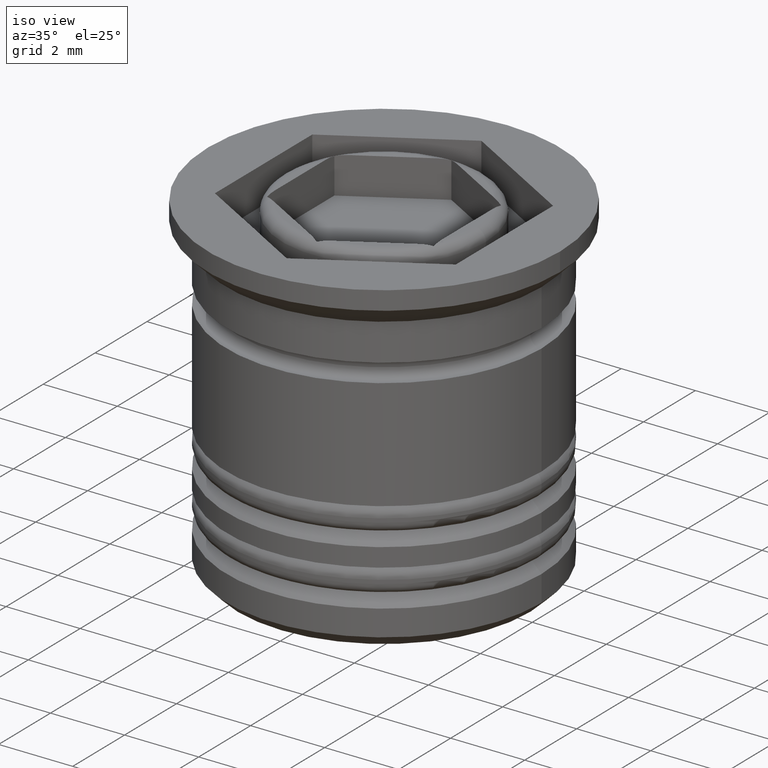
[diagram: clean part render]
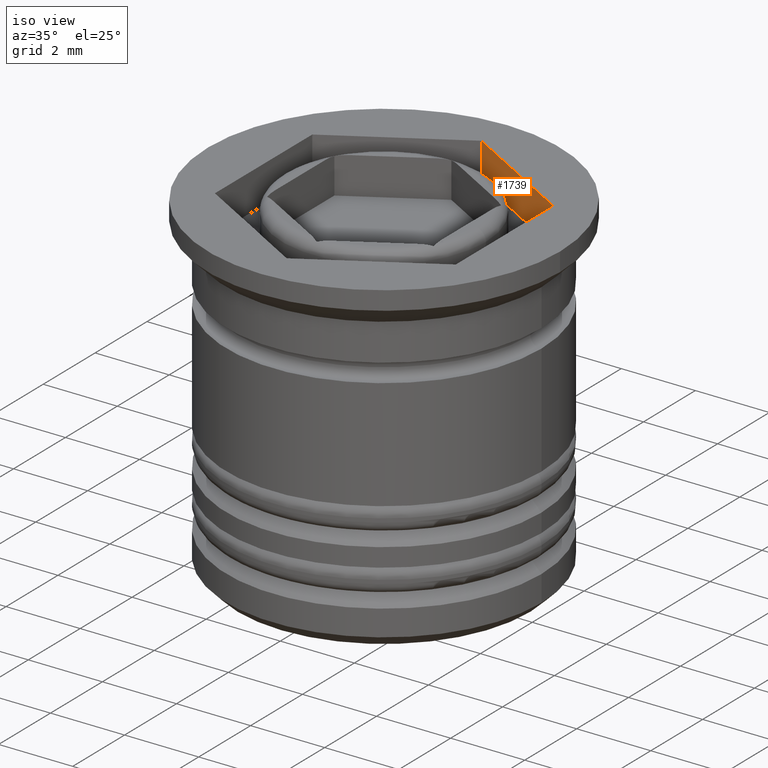
[diagram: same view with one face highlighted and labeled with its STEP entity id]
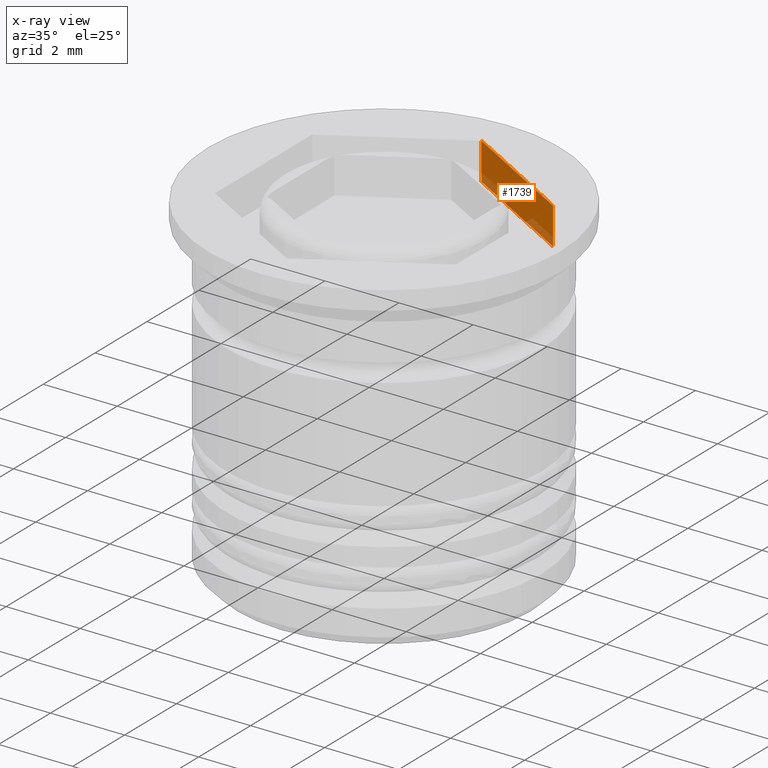
[diagram: x-ray of the same camera — body ghosted, the highlighted face saturated]
A machine part, iso view. The second image highlights one B-rep face of the part: STEP entity #1739.
The next image is the same camera in x-ray: the body ghosted, the highlighted face saturated — about 15% of this face is hidden behind the body in this view.
In plain terms, the highlighted planar face has unit normal (0.5, 0.866, 0).
Its self-contained STEP definition (entity closure, byte-faithful):
#51 = CARTESIAN_POINT ( 'NONE',  ( 3.249999999999999556, 1.876388374866283515, 0.000000000000000000 ) ) ;
#59 = DIRECTION ( 'NONE',  ( -0.8660254037844387076, 0.4999999999999998890, 0.000000000000000000 ) ) ;
#152 = EDGE_CURVE ( 'NONE', #932, #1563, #1043, .T. ) ;
#485 = VECTOR ( 'NONE', #59, 1000.000000000000114 ) ;
#500 = EDGE_CURVE ( 'NONE', #862, #932, #1842, .T. ) ;
#608 = PLANE ( 'NONE',  #1564 ) ;
#611 = EDGE_CURVE ( 'NONE', #862, #875, #1819, .T. ) ;
#692 = ORIENTED_EDGE ( 'NONE', *, *, #817, .F. ) ;
#817 = EDGE_CURVE ( 'NONE', #875, #1563, #1213, .T. ) ;
#862 = VERTEX_POINT ( 'NONE', #1078 ) ;
#875 = VERTEX_POINT ( 'NONE', #1684 ) ;
#876 = CARTESIAN_POINT ( 'NONE',  ( 1.624999999999999556, 2.814582562299425827, 0.000000000000000000 ) ) ;
#922 = CARTESIAN_POINT ( 'NONE',  ( 0.000000000000000000, 3.752776749732567474, 0.000000000000000000 ) ) ;
#932 = VERTEX_POINT ( 'NONE', #51 ) ;
#1043 = LINE ( 'NONE', #876, #1161 ) ;
#1046 = DIRECTION ( 'NONE',  ( -0.000000000000000000, -0.000000000000000000, 1.000000000000000000 ) ) ;
#1070 = DIRECTION ( 'NONE',  ( 0.4999999999999998335, 0.8660254037844387076, 0.000000000000000000 ) ) ;
#1078 = CARTESIAN_POINT ( 'NONE',  ( 3.249999999999999556, 1.876388374866284403, -1.000000000000000000 ) ) ;
#1161 = VECTOR ( 'NONE', #1176, 1000.000000000000114 ) ;
#1176 = DIRECTION ( 'NONE',  ( -0.8660254037844387076, 0.4999999999999998890, 0.000000000000000000 ) ) ;
#1213 = LINE ( 'NONE', #1804, #1688 ) ;
#1237 = CARTESIAN_POINT ( 'NONE',  ( 1.624999999999999556, 2.814582562299425827, -1.000000000000000000 ) ) ;
#1261 = EDGE_LOOP ( 'NONE', ( #1270, #692, #1429, #1679 ) ) ;
#1262 = DIRECTION ( 'NONE',  ( -0.000000000000000000, -0.000000000000000000, 1.000000000000000000 ) ) ;
#1270 = ORIENTED_EDGE ( 'NONE', *, *, #152, .T. ) ;
#1429 = ORIENTED_EDGE ( 'NONE', *, *, #611, .F. ) ;
#1468 = CARTESIAN_POINT ( 'NONE',  ( 1.624999999999999556, 2.814582562299425827, -1.000000000000000000 ) ) ;
#1557 = CARTESIAN_POINT ( 'NONE',  ( 3.249999999999999556, 1.876388374866284403, -1.000000000000000000 ) ) ;
#1563 = VERTEX_POINT ( 'NONE', #922 ) ;
#1564 = AXIS2_PLACEMENT_3D ( 'NONE', #1237, #1070, #1678 ) ;
#1678 = DIRECTION ( 'NONE',  ( -0.8660254037844387076, 0.4999999999999998335, 0.000000000000000000 ) ) ;
#1679 = ORIENTED_EDGE ( 'NONE', *, *, #500, .T. ) ;
#1684 = CARTESIAN_POINT ( 'NONE',  ( 0.000000000000000000, 3.752776749732567474, -1.000000000000000000 ) ) ;
#1688 = VECTOR ( 'NONE', #1046, 1000.000000000000000 ) ;
#1739 = ADVANCED_FACE ( 'NONE', ( #2015 ), #608, .F. ) ;
#1766 = VECTOR ( 'NONE', #1262, 1000.000000000000000 ) ;
#1804 = CARTESIAN_POINT ( 'NONE',  ( 0.000000000000000000, 3.752776749732567474, -1.000000000000000000 ) ) ;
#1819 = LINE ( 'NONE', #1468, #485 ) ;
#1842 = LINE ( 'NONE', #1557, #1766 ) ;
#2015 = FACE_OUTER_BOUND ( 'NONE', #1261, .T. ) ;